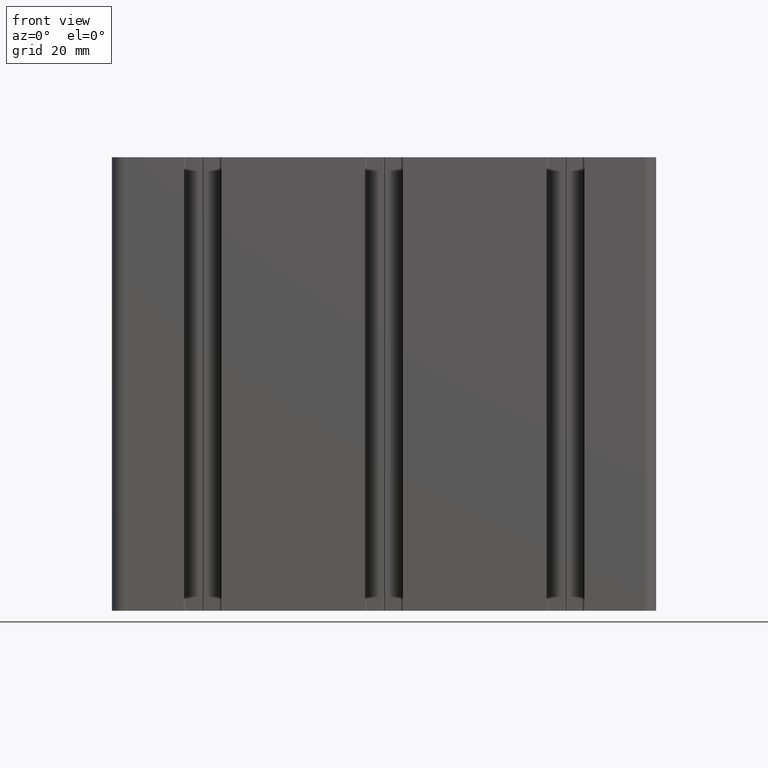
[diagram: clean part render]
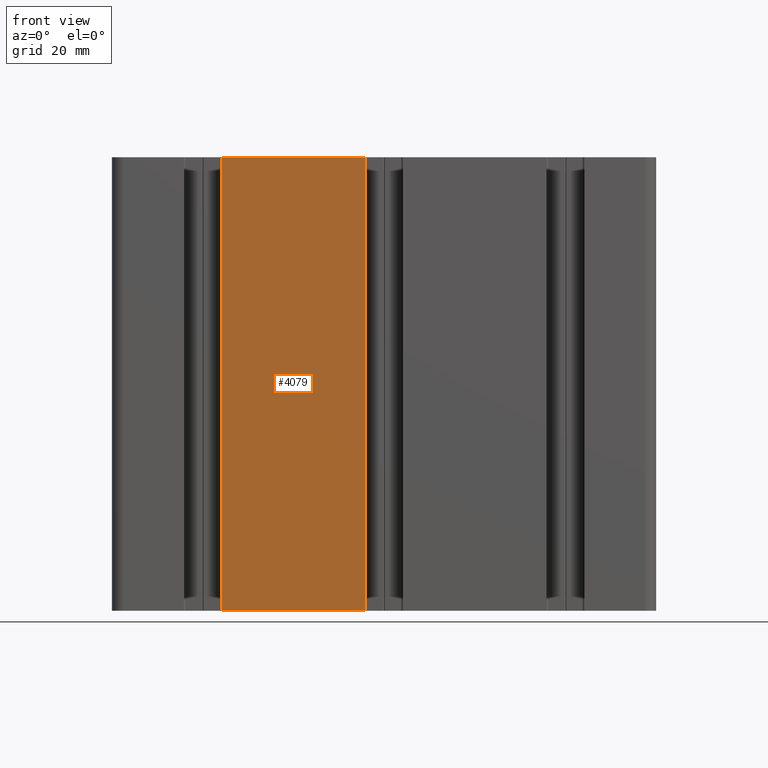
[diagram: same view with one face highlighted and labeled with its STEP entity id]
A machine part, front view. The second image highlights one B-rep face of the part: STEP entity #4079.
In plain terms, the highlighted planar face has unit normal (0, -1, 0).
Its self-contained STEP definition (entity closure, byte-faithful):
#105=PLANE('',#4390);
#287=FACE_OUTER_BOUND('',#495,.T.);
#495=EDGE_LOOP('',(#3149,#3150,#3151,#3152));
#853=LINE('',#6414,#1309);
#854=LINE('',#6417,#1310);
#855=LINE('',#6419,#1311);
#856=LINE('',#6420,#1312);
#1309=VECTOR('',#5228,100.);
#1310=VECTOR('',#5231,31.7);
#1311=VECTOR('',#5232,31.7);
#1312=VECTOR('',#5233,100.);
#1901=VERTEX_POINT('',#6410);
#1902=VERTEX_POINT('',#6412);
#1903=VERTEX_POINT('',#6416);
#1904=VERTEX_POINT('',#6418);
#2425=EDGE_CURVE('',#1901,#1902,#853,.T.);
#2426=EDGE_CURVE('',#1903,#1901,#854,.T.);
#2427=EDGE_CURVE('',#1904,#1902,#855,.T.);
#2428=EDGE_CURVE('',#1903,#1904,#856,.T.);
#3149=ORIENTED_EDGE('',*,*,#2426,.T.);
#3150=ORIENTED_EDGE('',*,*,#2425,.T.);
#3151=ORIENTED_EDGE('',*,*,#2427,.F.);
#3152=ORIENTED_EDGE('',*,*,#2428,.F.);
#4079=ADVANCED_FACE('',(#287),#105,.T.);
#4390=AXIS2_PLACEMENT_3D('',#6415,#5229,#5230);
#5228=DIRECTION('',(0.,0.,1.));
#5229=DIRECTION('center_axis',(0.,-1.,0.));
#5230=DIRECTION('ref_axis',(1.,0.,0.));
#5231=DIRECTION('',(1.,0.,0.));
#5232=DIRECTION('',(1.,0.,0.));
#5233=DIRECTION('',(0.,0.,1.));
#6410=CARTESIAN_POINT('',(-4.15,-20.,0.));
#6412=CARTESIAN_POINT('',(-4.15,-20.,100.));
#6414=CARTESIAN_POINT('',(-4.15,-20.,0.));
#6415=CARTESIAN_POINT('Origin',(-35.85,-20.,0.));
#6416=CARTESIAN_POINT('',(-35.85,-20.,0.));
#6417=CARTESIAN_POINT('',(-35.85,-20.,0.));
#6418=CARTESIAN_POINT('',(-35.85,-20.,100.));
#6419=CARTESIAN_POINT('',(-35.85,-20.,100.));
#6420=CARTESIAN_POINT('',(-35.85,-20.,0.));